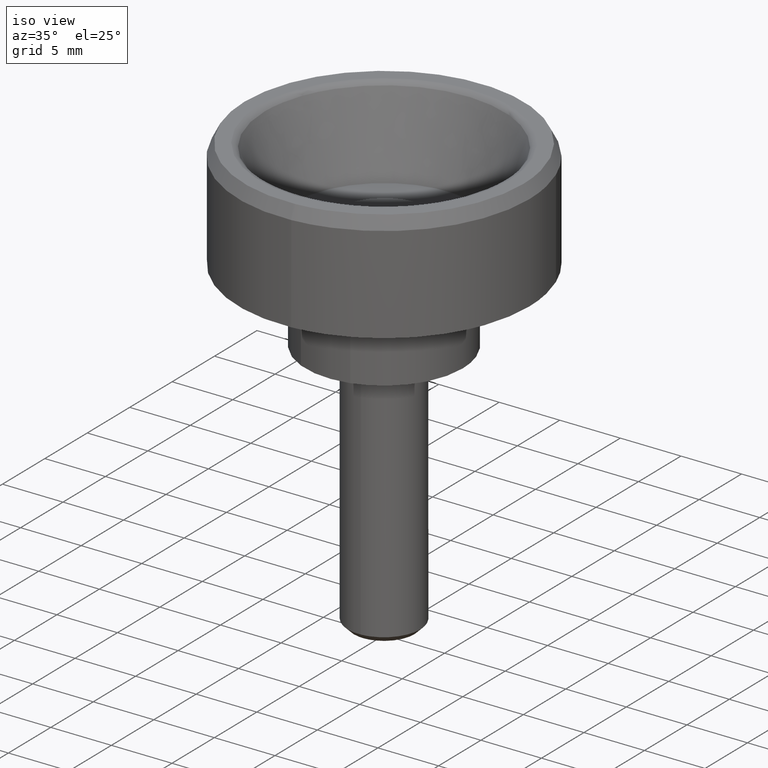
[diagram: clean part render]
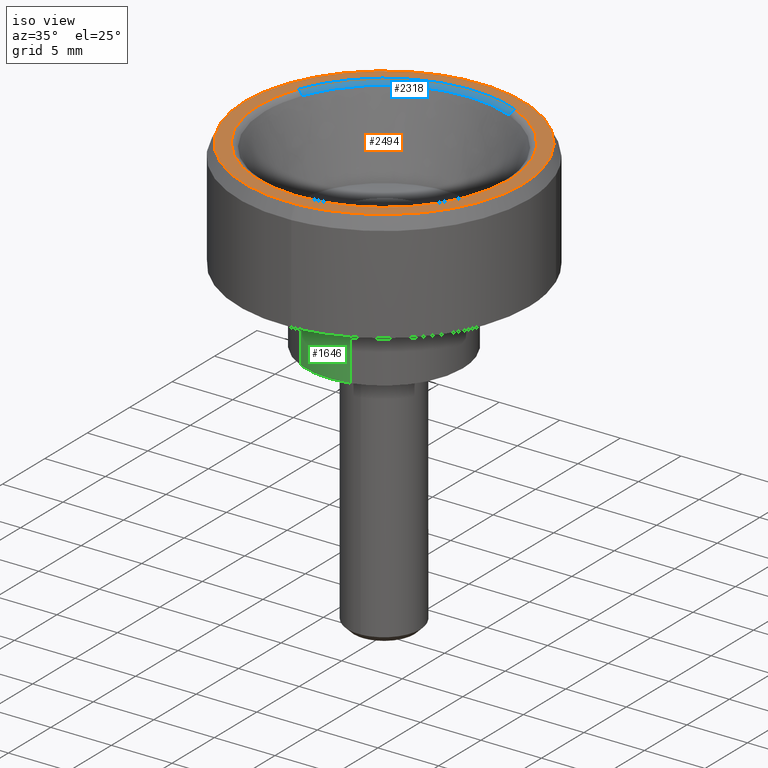
[diagram: same view with three faces highlighted in distinct colors, each labeled with its STEP entity id]
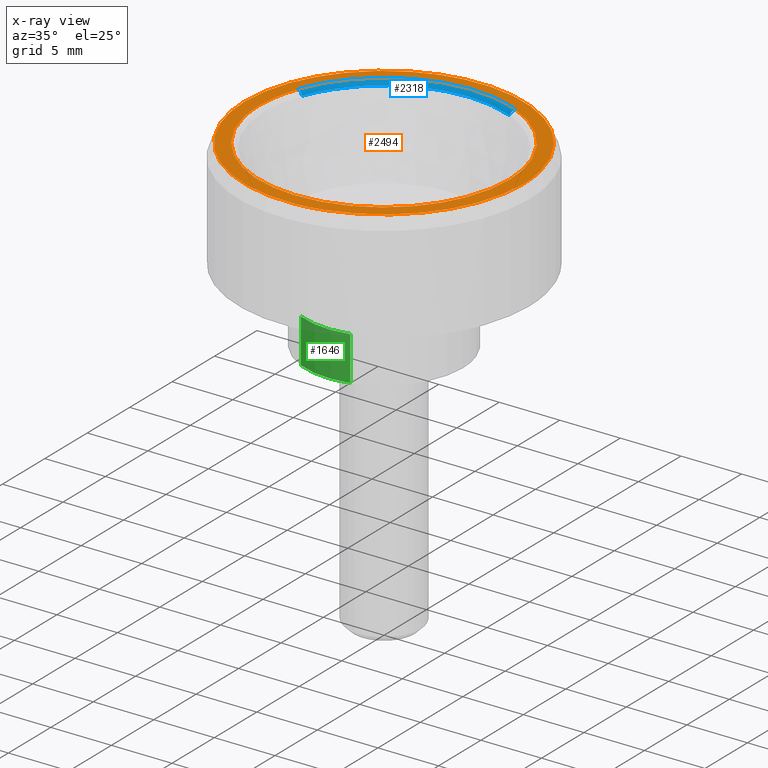
[diagram: x-ray of the same camera — body ghosted, the three highlighted faces saturated]
A machine part, iso view with three faces highlighted in distinct colors.
The next image is the same camera in x-ray (body ghosted, the three faces saturated) — at least one of them is partly hidden behind the body in this view.
Their STEP definitions:

[orange] entity #2494 — the highlighted face is a freeform B-spline surface patch.
#2059=CARTESIAN_POINT('',(-1.357393698569069,11.419609553181720,15.999999999997030));
#2060=VERTEX_POINT('',#2059);
#2066=CARTESIAN_POINT('',(11.500000000000000,0.0,16.0));
#2067=VERTEX_POINT('',#2066);
#2068=CARTESIAN_POINT('',(-1.357393698569069,11.419609553181722,15.999999999997026));
#2069=CARTESIAN_POINT('',(-0.681077376013309,11.500000000000004,16.000000000000004));
#2070=CARTESIAN_POINT('',(0.0,11.500000000000000,16.0));
#2071=CARTESIAN_POINT('',(11.500000000000000,11.500000000000000,15.999999999999998));
#2072=CARTESIAN_POINT('',(11.500000000000000,0.0,16.0));
#2080=(BOUNDED_CURVE()B_SPLINE_CURVE(2,(#2068,#2069,#2070,#2071,#2072),.UNSPECIFIED.,.F.,.U.)B_SPLINE_CURVE_WITH_KNOTS((3,2,3),(0.229562473515166,0.250000000000000,0.500000000000000),.UNSPECIFIED.)CURVE()GEOMETRIC_REPRESENTATION_ITEM()RATIONAL_B_SPLINE_CURVE((0.956026754186948,0.976055948333087,1.0,0.707106781186548,1.0))REPRESENTATION_ITEM(''));
#2081=EDGE_CURVE('',#2060,#2067,#2080,.T.);
#2083=CARTESIAN_POINT('',(0.702058204664164,-11.478550181851871,15.999999999997581));
#2084=VERTEX_POINT('',#2083);
#2085=CARTESIAN_POINT('',(11.500000000000000,0.0,16.0));
#2086=CARTESIAN_POINT('',(11.499999999999998,-10.818119769390449,16.000000000000007));
#2087=CARTESIAN_POINT('',(0.702058204664164,-11.478550181851871,15.999999999997582));
#2095=(BOUNDED_CURVE()B_SPLINE_CURVE(2,(#2085,#2086,#2087),.UNSPECIFIED.,.F.,.U.)B_SPLINE_CURVE_WITH_KNOTS((3,3),(0.500000000000000,0.739332962241570),.UNSPECIFIED.)CURVE()GEOMETRIC_REPRESENTATION_ITEM()RATIONAL_B_SPLINE_CURVE((1.0,0.719603993283633,0.976072041672347))REPRESENTATION_ITEM(''));
#2096=EDGE_CURVE('',#2067,#2084,#2095,.T.);
#2129=CARTESIAN_POINT('',(-11.500000000000000,0.0,16.0));
#2130=VERTEX_POINT('',#2129);
#2131=CARTESIAN_POINT('',(0.702058204664164,-11.478550181851864,15.999999999997579));
#2132=CARTESIAN_POINT('',(0.351356777947044,-11.500000000000000,16.0));
#2133=CARTESIAN_POINT('',(0.0,-11.500000000000000,16.0));
#2134=CARTESIAN_POINT('',(-11.500000000000000,-11.500000000000000,15.999999999999998));
#2135=CARTESIAN_POINT('',(-11.500000000000000,0.0,16.0));
#2143=(BOUNDED_CURVE()B_SPLINE_CURVE(2,(#2131,#2132,#2133,#2134,#2135),.UNSPECIFIED.,.F.,.U.)B_SPLINE_CURVE_WITH_KNOTS((3,2,3),(0.739332962241570,0.750000000000000,1.0),.UNSPECIFIED.)CURVE()GEOMETRIC_REPRESENTATION_ITEM()RATIONAL_B_SPLINE_CURVE((0.976072041672349,0.987502787902916,1.0,0.707106781186548,1.0))REPRESENTATION_ITEM(''));
#2144=EDGE_CURVE('',#2084,#2130,#2143,.T.);
#2146=CARTESIAN_POINT('',(-11.500000000000000,0.0,16.0));
#2147=CARTESIAN_POINT('',(-11.500000000000000,10.214007048411599,15.999999999999995));
#2148=CARTESIAN_POINT('',(-1.357393698569070,11.419609553181719,15.999999999997023));
#2156=(BOUNDED_CURVE()B_SPLINE_CURVE(2,(#2146,#2147,#2148),.UNSPECIFIED.,.F.,.U.)B_SPLINE_CURVE_WITH_KNOTS((3,3),(0.0,0.229562473515166),.UNSPECIFIED.)CURVE()GEOMETRIC_REPRESENTATION_ITEM()RATIONAL_B_SPLINE_CURVE((1.0,0.731050832853461,0.956026754186948))REPRESENTATION_ITEM(''));
#2157=EDGE_CURVE('',#2130,#2060,#2156,.T.);
#2197=CARTESIAN_POINT('',(-9.664137561381327,3.686510465323361,16.0));
#2198=VERTEX_POINT('',#2197);
#2212=CARTESIAN_POINT('',(-10.343399549122459,0.0,16.0));
#2213=VERTEX_POINT('',#2212);
#2214=CARTESIAN_POINT('',(-10.343399549122459,0.0,16.0));
#2215=CARTESIAN_POINT('',(-10.343399549122459,1.905834310142630,15.999999999999996));
#2216=CARTESIAN_POINT('',(-9.664137561381327,3.686510465323361,16.000000000000004));
#2224=(BOUNDED_CURVE()B_SPLINE_CURVE(2,(#2214,#2215,#2216),.UNSPECIFIED.,.F.,.U.)B_SPLINE_CURVE_WITH_KNOTS((3,3),(0.0,0.060525011914817),.UNSPECIFIED.)CURVE()GEOMETRIC_REPRESENTATION_ITEM()RATIONAL_B_SPLINE_CURVE((1.0,0.929090537766186,0.892515443904972))REPRESENTATION_ITEM(''));
#2225=EDGE_CURVE('',#2213,#2198,#2224,.T.);
#2227=CARTESIAN_POINT('',(10.343399549122459,0.0,16.0));
#2228=VERTEX_POINT('',#2227);
#2229=CARTESIAN_POINT('',(10.343399549122459,0.0,16.0));
#2230=CARTESIAN_POINT('',(10.343399549122459,-10.343399549122459,15.999999999999998));
#2231=CARTESIAN_POINT('',(0.0,-10.343399549122459,16.0));
#2232=CARTESIAN_POINT('',(-10.343399549122459,-10.343399549122459,15.999999999999998));
#2233=CARTESIAN_POINT('',(-10.343399549122459,0.0,16.0));
#2241=(BOUNDED_CURVE()B_SPLINE_CURVE(2,(#2229,#2230,#2231,#2232,#2233),.UNSPECIFIED.,.F.,.U.)B_SPLINE_CURVE_WITH_KNOTS((3,2,3),(0.500000000000000,0.750000000000000,1.0),.UNSPECIFIED.)CURVE()GEOMETRIC_REPRESENTATION_ITEM()RATIONAL_B_SPLINE_CURVE((1.0,0.707106781186548,1.0,0.707106781186548,1.0))REPRESENTATION_ITEM(''));
#2242=EDGE_CURVE('',#2228,#2213,#2241,.T.);
#2244=CARTESIAN_POINT('',(4.233190527995977,9.437479121062076,16.0));
#2245=VERTEX_POINT('',#2244);
#2246=CARTESIAN_POINT('',(4.233190527995977,9.437479121062076,15.999999999999996));
#2247=CARTESIAN_POINT('',(10.343399549122458,6.696738865351247,16.000000000000004));
#2248=CARTESIAN_POINT('',(10.343399549122459,0.0,16.0));
#2256=(BOUNDED_CURVE()B_SPLINE_CURVE(2,(#2246,#2247,#2248),.UNSPECIFIED.,.F.,.U.)B_SPLINE_CURVE_WITH_KNOTS((3,3),(0.319501085437766,0.500000000000000),.UNSPECIFIED.)CURVE()GEOMETRIC_REPRESENTATION_ITEM()RATIONAL_B_SPLINE_CURVE((0.882422160153854,0.788532367686132,1.0))REPRESENTATION_ITEM(''));
#2257=EDGE_CURVE('',#2245,#2228,#2256,.T.);
#2300=CARTESIAN_POINT('',(-9.664137561381327,3.686510465323361,16.0));
#2301=CARTESIAN_POINT('',(-7.124780985591486,10.343399549122459,16.000000000000004));
#2302=CARTESIAN_POINT('',(0.0,10.343399549122459,16.0));
#2303=CARTESIAN_POINT('',(2.213530638946205,10.343399549122459,15.999999999999996));
#2304=CARTESIAN_POINT('',(4.233190527995977,9.437479121062076,15.999999999999996));
#2312=(BOUNDED_CURVE()B_SPLINE_CURVE(2,(#2300,#2301,#2302,#2303,#2304),.UNSPECIFIED.,.F.,.U.)B_SPLINE_CURVE_WITH_KNOTS((3,2,3),(0.060525011914817,0.250000000000000,0.319501085437766),.UNSPECIFIED.)CURVE()GEOMETRIC_REPRESENTATION_ITEM()RATIONAL_B_SPLINE_CURVE((0.892515443904972,0.778016243420361,1.0,0.918574413500416,0.882422160153854))REPRESENTATION_ITEM(''));
#2313=EDGE_CURVE('',#2198,#2245,#2312,.T.);
#2477=CARTESIAN_POINT('',(12.648849955421539,-12.648570271550851,16.0));
#2478=CARTESIAN_POINT('',(-12.648850572329611,-12.648570271550851,16.0));
#2479=CARTESIAN_POINT('',(12.648849955421539,12.648640804707250,16.0));
#2480=CARTESIAN_POINT('',(-12.648850572329611,12.648640804707250,16.0));
#2481=B_SPLINE_SURFACE_WITH_KNOTS('',1,1,((#2477,#2479),(#2478,#2480)),.UNSPECIFIED.,.F.,.F.,.U.,(2,2),(2,2),(0.0,25.297700527751150),(0.0,25.297211076258101),.UNSPECIFIED.);
#2482=ORIENTED_EDGE('',*,*,#2144,.F.);
#2483=ORIENTED_EDGE('',*,*,#2096,.F.);
#2484=ORIENTED_EDGE('',*,*,#2081,.F.);
#2485=ORIENTED_EDGE('',*,*,#2157,.F.);
#2486=EDGE_LOOP('',(#2482,#2483,#2484,#2485));
#2487=FACE_OUTER_BOUND('',#2486,.T.);
#2488=ORIENTED_EDGE('',*,*,#2242,.T.);
#2489=ORIENTED_EDGE('',*,*,#2225,.T.);
#2490=ORIENTED_EDGE('',*,*,#2313,.T.);
#2491=ORIENTED_EDGE('',*,*,#2257,.T.);
#2492=EDGE_LOOP('',(#2488,#2489,#2490,#2491));
#2493=FACE_BOUND('',#2492,.T.);
#2494=ADVANCED_FACE('',(#2487,#2493),#2481,.F.);

[blue] entity #2318 — the highlighted face is a freeform B-spline surface patch.
#696=CARTESIAN_POINT('',(4.042197723821591,9.011679575904600,15.679489539875529));
#697=VERTEX_POINT('',#696);
#711=CARTESIAN_POINT('',(-9.228111655613819,3.520182735117002,15.679489539855380));
#712=VERTEX_POINT('',#711);
#713=CARTESIAN_POINT('',(4.042197723821591,9.011679575904600,15.679489539875528));
#714=CARTESIAN_POINT('',(2.113660712872242,9.876726746020941,15.679489539654549));
#715=CARTESIAN_POINT('',(0.0,9.876726746020941,15.679489539654551));
#716=CARTESIAN_POINT('',(-6.803325597746202,9.876726746020941,15.679489539654552));
#717=CARTESIAN_POINT('',(-9.228111655613819,3.520182735117002,15.679489539855375));
#725=(BOUNDED_CURVE()B_SPLINE_CURVE(2,(#713,#714,#715,#716,#717),.UNSPECIFIED.,.F.,.U.)B_SPLINE_CURVE_WITH_KNOTS((3,2,3),(0.680498914563099,0.750000000000000,0.939474988085871),.UNSPECIFIED.)CURVE()GEOMETRIC_REPRESENTATION_ITEM()RATIONAL_B_SPLINE_CURVE((0.882422160154754,0.918574413501429,1.0,0.778016243419555,0.892515443905803))REPRESENTATION_ITEM(''));
#726=EDGE_CURVE('',#697,#712,#725,.T.);
#2197=CARTESIAN_POINT('',(-9.664137561381327,3.686510465323361,16.0));
#2198=VERTEX_POINT('',#2197);
#2199=CARTESIAN_POINT('',(-9.228111655613819,3.520182735117002,15.679489539855375));
#2200=CARTESIAN_POINT('',(-9.343289424467244,3.564118787094788,15.999999998901318));
#2201=CARTESIAN_POINT('',(-9.664137561381327,3.686510465323361,16.000000000000007));
#2209=(BOUNDED_CURVE()B_SPLINE_CURVE(2,(#2199,#2200,#2201),.UNSPECIFIED.,.F.,.U.)B_SPLINE_CURVE_WITH_KNOTS((3,3),(-1.675087512830383,-0.336518403657370),.UNSPECIFIED.)CURVE()GEOMETRIC_REPRESENTATION_ITEM()RATIONAL_B_SPLINE_CURVE((0.903693025822511,0.743790726913312,0.900944030037417))REPRESENTATION_ITEM(''));
#2210=EDGE_CURVE('',#712,#2198,#2209,.T.);
#2244=CARTESIAN_POINT('',(4.233190527995977,9.437479121062076,16.0));
#2245=VERTEX_POINT('',#2244);
#2259=CARTESIAN_POINT('',(4.042197723821591,9.011679575904600,15.679489539875529));
#2260=CARTESIAN_POINT('',(4.092649141361860,9.124156015731312,15.999999998274319));
#2261=CARTESIAN_POINT('',(4.233190527995978,9.437479121062076,16.000000000000004));
#2269=(BOUNDED_CURVE()B_SPLINE_CURVE(2,(#2259,#2260,#2261),.UNSPECIFIED.,.F.,.U.)B_SPLINE_CURVE_WITH_KNOTS((3,3),(-1.675087512728145,-0.336518405812580),.UNSPECIFIED.)CURVE()GEOMETRIC_REPRESENTATION_ITEM()RATIONAL_B_SPLINE_CURVE((0.883365174855728,0.727059750398785,0.880678015058637))REPRESENTATION_ITEM(''));
#2270=EDGE_CURVE('',#697,#2245,#2269,.T.);
#2275=CARTESIAN_POINT('',(-9.219414079429415,3.516864932006987,15.653105900816836));
#2276=CARTESIAN_POINT('',(-5.702549147422428,12.736279011436398,15.653105900816831));
#2277=CARTESIAN_POINT('',(3.516864932006986,9.219414079429416,15.653105900816836));
#2278=CARTESIAN_POINT('',(3.780720347416693,9.118763013149078,15.653105900816835));
#2279=CARTESIAN_POINT('',(4.038387420122052,9.003186211723151,15.653105900816833));
#2280=CARTESIAN_POINT('',(-9.329947749691860,3.559029432419150,16.020890144700868));
#2281=CARTESIAN_POINT('',(-5.770918317272710,12.888977182111010,16.020890144700878));
#2282=CARTESIAN_POINT('',(3.559029432419150,9.329947749691860,16.020890144700868));
#2283=CARTESIAN_POINT('',(3.826048270930650,9.228089954689290,16.020890144700871));
#2284=CARTESIAN_POINT('',(4.086804573277560,9.111127476478620,16.020890144700875));
#2285=CARTESIAN_POINT('',(-9.690350358363368,3.696509676274205,15.999212284604074));
#2286=CARTESIAN_POINT('',(-5.993840682089163,13.386860034637571,15.999212284604072));
#2287=CARTESIAN_POINT('',(3.696509676274205,9.690350358363368,15.999212284604074));
#2288=CARTESIAN_POINT('',(3.973843072653100,9.584557941644011,15.999212284604081));
#2289=CARTESIAN_POINT('',(4.244672020004529,9.463077369292329,15.999212284604072));
#2297=(BOUNDED_SURFACE()B_SPLINE_SURFACE(2,2,((#2275,#2280,#2285),(#2276,#2281,#2286),(#2277,#2282,#2287),(#2278,#2283,#2288),(#2279,#2284,#2289)),.UNSPECIFIED.,.F.,.F.,.U.)B_SPLINE_SURFACE_WITH_KNOTS((3,2,3),(3,3),(0.0,17.183988893793611,17.871347794028200),(0.0,0.682661878448269),.UNSPECIFIED.)GEOMETRIC_REPRESENTATION_ITEM()RATIONAL_B_SPLINE_SURFACE(((0.920458674071560,0.727162464453977,0.917434908918335),(0.650862570237978,0.514181509639729,0.648724445393418),(0.920458674071560,0.727162464453977,0.917434908918335),(0.909674840202492,0.718643234385986,0.906686500627829),(0.899753712220208,0.710805542073468,0.896797964180525)))REPRESENTATION_ITEM('')SURFACE());
#2298=ORIENTED_EDGE('',*,*,#726,.F.);
#2299=ORIENTED_EDGE('',*,*,#2270,.T.);
#2300=CARTESIAN_POINT('',(-9.664137561381327,3.686510465323361,16.0));
#2301=CARTESIAN_POINT('',(-7.124780985591486,10.343399549122459,16.000000000000004));
#2302=CARTESIAN_POINT('',(0.0,10.343399549122459,16.0));
#2303=CARTESIAN_POINT('',(2.213530638946205,10.343399549122459,15.999999999999996));
#2304=CARTESIAN_POINT('',(4.233190527995977,9.437479121062076,15.999999999999996));
#2312=(BOUNDED_CURVE()B_SPLINE_CURVE(2,(#2300,#2301,#2302,#2303,#2304),.UNSPECIFIED.,.F.,.U.)B_SPLINE_CURVE_WITH_KNOTS((3,2,3),(0.060525011914817,0.250000000000000,0.319501085437766),.UNSPECIFIED.)CURVE()GEOMETRIC_REPRESENTATION_ITEM()RATIONAL_B_SPLINE_CURVE((0.892515443904972,0.778016243420361,1.0,0.918574413500416,0.882422160153854))REPRESENTATION_ITEM(''));
#2313=EDGE_CURVE('',#2198,#2245,#2312,.T.);
#2314=ORIENTED_EDGE('',*,*,#2313,.F.);
#2315=ORIENTED_EDGE('',*,*,#2210,.F.);
#2316=EDGE_LOOP('',(#2298,#2299,#2314,#2315));
#2317=FACE_OUTER_BOUND('',#2316,.T.);
#2318=ADVANCED_FACE('',(#2317),#2297,.T.);

[green] entity #1646 — the highlighted face is a freeform B-spline surface patch.
#1457=CARTESIAN_POINT('',(-2.727348148580637,-5.900133225311993,4.555702000011941));
#1458=VERTEX_POINT('',#1457);
#1521=CARTESIAN_POINT('',(1.627461366202542,-6.292961902112401,4.555701999999904));
#1522=VERTEX_POINT('',#1521);
#1536=CARTESIAN_POINT('',(1.627461470543505,-6.292961875128297,0.899993000000109));
#1537=VERTEX_POINT('',#1536);
#1538=CARTESIAN_POINT('',(1.627461366202542,-6.292961902112401,4.555701999999904));
#1539=CARTESIAN_POINT('',(1.627461470543505,-6.292961875128297,0.899993000000109));
#1540=QUASI_UNIFORM_CURVE('',1,(#1538,#1539),.UNSPECIFIED.,.F.,.U.);
#1541=EDGE_CURVE('',#1522,#1537,#1540,.T.);
#1575=CARTESIAN_POINT('',(-2.727347358110524,-5.900133590708370,0.899993000000109));
#1576=VERTEX_POINT('',#1575);
#1590=CARTESIAN_POINT('',(-2.727348148580637,-5.900133225311993,4.555702000011941));
#1591=CARTESIAN_POINT('',(-2.727347358110524,-5.900133590708370,0.899993000000109));
#1592=QUASI_UNIFORM_CURVE('',1,(#1590,#1591),.UNSPECIFIED.,.F.,.U.);
#1593=EDGE_CURVE('',#1458,#1576,#1592,.T.);
#1598=CARTESIAN_POINT('',(1.627470026353868,-6.292959662457697,4.647094725082879));
#1599=CARTESIAN_POINT('',(-0.620089279064028,-6.874218020721477,4.647094725082879));
#1600=CARTESIAN_POINT('',(-2.727348730903438,-5.900132956132376,4.647094725082880));
#1601=CARTESIAN_POINT('',(1.627470026353868,-6.292959662457697,0.806315456873040));
#1602=CARTESIAN_POINT('',(-0.620089279064028,-6.874218020721477,0.806315456873040));
#1603=CARTESIAN_POINT('',(-2.727348730903438,-5.900132956132376,0.806315456873040));
#1611=(BOUNDED_SURFACE()B_SPLINE_SURFACE(2,1,((#1598,#1601),(#1599,#1602),(#1600,#1603)),.UNSPECIFIED.,.F.,.F.,.U.)B_SPLINE_SURFACE_WITH_KNOTS((3,3),(2,2),(0.0,4.726924580153127),(0.0,3.840779268209840),.UNSPECIFIED.)GEOMETRIC_REPRESENTATION_ITEM()RATIONAL_B_SPLINE_SURFACE(((1.0,1.0),(0.871126983722081,0.871126983722081),(0.855662221768731,0.855662221768731)))REPRESENTATION_ITEM('')SURFACE());
#1612=CARTESIAN_POINT('',(1.627461366202542,-6.292961902112401,4.555701999999904));
#1613=CARTESIAN_POINT('',(0.826899897089107,-6.500000000000001,4.555701999999901));
#1614=CARTESIAN_POINT('',(0.0,-6.500000000000000,4.555701999999901));
#1615=CARTESIAN_POINT('',(-1.429642607359704,-6.500000000000001,4.555701999999901));
#1616=CARTESIAN_POINT('',(-2.727348148580637,-5.900133225311993,4.555702000011941));
#1624=(BOUNDED_CURVE()B_SPLINE_CURVE(2,(#1612,#1613,#1614,#1615,#1616),.UNSPECIFIED.,.F.,.U.)B_SPLINE_CURVE_WITH_KNOTS((3,2,3),(0.707273993370785,0.750000000000000,0.821269367036811),.UNSPECIFIED.)CURVE()GEOMETRIC_REPRESENTATION_ITEM()RATIONAL_B_SPLINE_CURVE((0.916996498520908,0.949943369565297,1.0,0.916502742743164,0.880611858878364))REPRESENTATION_ITEM(''));
#1625=EDGE_CURVE('',#1522,#1458,#1624,.T.);
#1626=ORIENTED_EDGE('',*,*,#1625,.T.);
#1627=ORIENTED_EDGE('',*,*,#1593,.T.);
#1628=CARTESIAN_POINT('',(1.627461470543506,-6.292961875128297,0.899993000000109));
#1629=CARTESIAN_POINT('',(0.826899951848069,-6.500000000000001,0.899993000000109));
#1630=CARTESIAN_POINT('',(0.0,-6.500000000000000,0.899993000000109));
#1631=CARTESIAN_POINT('',(-1.429642487158555,-6.500000000000000,0.899993000000109));
#1632=CARTESIAN_POINT('',(-2.727347358110525,-5.900133590708370,0.899993000000109));
#1640=(BOUNDED_CURVE()B_SPLINE_CURVE(2,(#1628,#1629,#1630,#1631,#1632),.UNSPECIFIED.,.F.,.U.)B_SPLINE_CURVE_WITH_KNOTS((3,2,3),(0.707273990683014,0.750000000000000,0.821269361544972),.UNSPECIFIED.)CURVE()GEOMETRIC_REPRESENTATION_ITEM()RATIONAL_B_SPLINE_CURVE((0.916996494375721,0.949943366416377,1.0,0.916502749177254,0.880611864409688))REPRESENTATION_ITEM(''));
#1641=EDGE_CURVE('',#1537,#1576,#1640,.T.);
#1642=ORIENTED_EDGE('',*,*,#1641,.F.);
#1643=ORIENTED_EDGE('',*,*,#1541,.F.);
#1644=EDGE_LOOP('',(#1626,#1627,#1642,#1643));
#1645=FACE_OUTER_BOUND('',#1644,.T.);
#1646=ADVANCED_FACE('',(#1645),#1611,.T.);